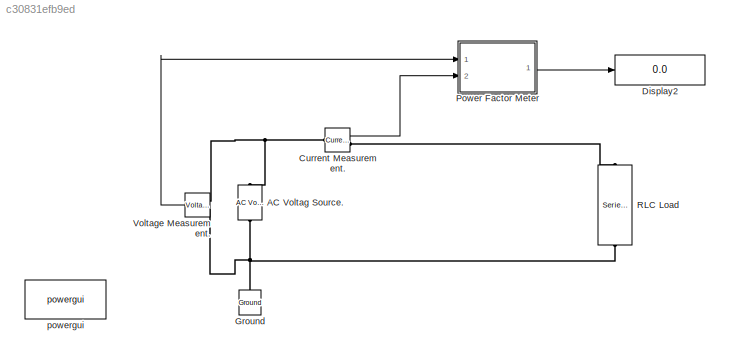
MODEL slx_c30831efb9ed
KIND model
CONFIG AbsTol = auto
CONFIG EnableMultiTasking = off
CONFIG FixedStep = auto
CONFIG MaxStep = auto
CONFIG MinStep = auto
CONFIG RelTol = 1e-3
CONFIG SampleTimeConstraint = Unconstrained
CONFIG Solver = VariableStepAuto
CONFIG SolverName = VariableStepAuto
CONFIG StartTime = 0.0
CONFIG StopTime = 0.1
BLOCK [Reference]  RLC Load  REF=powerlib/Elements/Series RLC Load
  AttributesFormatString = \n
  Ports = [0, 0, 0, 0, 0, 1, 1]
  SourceBlock = powerlib/Elements/Series RLC Load
  SourceType = Series RLC Load
BLOCK [Reference] AC Voltag Source.  REF=powerlib/Electrical
Sources/AC Voltage Source
  Ports = [0, 0, 0, 0, 0, 1, 1]
  SourceBlock = powerlib/Electrical\nSources/AC Voltage Source
  SourceType = AC Voltage Source
BLOCK [Reference] Current Measurement.  REF=powerlib/Measurements/Current Measurement
  Ports = [0, 1, 0, 0, 0, 1, 1]
  SourceBlock = powerlib/Measurements/Current Measurement
  SourceType = Current Measurement
  UserDataPersistent = on
BLOCK [Display] Display2
  Decimation = 1
  Ports = [1]
BLOCK [Reference] Ground  REF=powerlib/Elements/Ground
  Ports = [0, 0, 0, 0, 0, 1]
  SourceBlock = powerlib/Elements/Ground
  SourceType = Ground
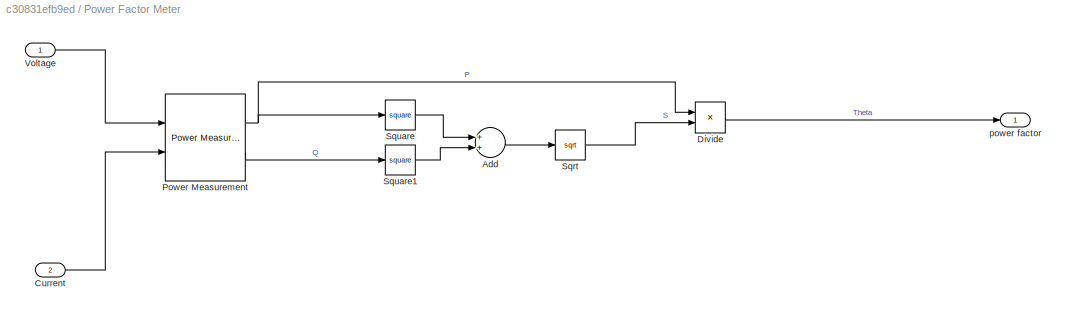
BLOCK [SubSystem] Power Factor Meter
  Ports = [2, 1]
  RequestExecContextInheritance = off
BLOCK [Sum] Power Factor Meter/Add
  InputSameDT = off
  OutDataTypeStr = Inherit: Inherit via internal rule
  Ports = [2, 1]
  SaturateOnIntegerOverflow = off
BLOCK [Inport] Power Factor Meter/Current
  IconDisplay = Port number
  Port = 2
BLOCK [Product] Power Factor Meter/Divide
  InputSameDT = off
  Inputs = */
  OutDataTypeStr = Inherit: Inherit via internal rule
  Ports = [2, 1]
  RndMeth = Floor
  SaturateOnIntegerOverflow = off
BLOCK [Reference] Power Factor Meter/Power Measurement  REF=eePowerMeasurement/Power
Measurement
  Ports = [2, 2]
  SourceBlock = eePowerMeasurement/Power\nMeasurement
  SourceType = Power Measurement
BLOCK [Sqrt] Power Factor Meter/Sqrt
BLOCK [Math] Power Factor Meter/Square
  Operator = square
  Ports = [1, 1]
BLOCK [Math] Power Factor Meter/Square1
  Operator = square
  Ports = [1, 1]
BLOCK [Inport] Power Factor Meter/Voltage
  IconDisplay = Port number
BLOCK [Outport] Power Factor Meter/power factor
  IconDisplay = Port number
BLOCK [Reference] Voltage Measurement.  REF=powerlib/Measurements/Voltage Measurement
  Ports = [0, 1, 0, 0, 0, 2]
  SourceBlock = powerlib/Measurements/Voltage Measurement
  SourceType = Voltage Measurement
  UserDataPersistent = on
BLOCK [Reference] powergui  REF=powerlib/powergui
  Ports = []
  Priority = 1
  SourceBlock = powerlib/powergui
  SourceType = PSB option menu block
LINE Current Measurement.:1 -> Power Factor Meter:2
LINE Power Factor Meter/Add:1 -> Power Factor Meter/Sqrt:1
LINE Power Factor Meter/Current:1 -> Power Factor Meter/Power Measurement:2
LINE Power Factor Meter/Divide:1 -> Power Factor Meter/power factor:1
NET Power Factor Meter/Power Measurement:1 -> Power Factor Meter/Divide:1, Power Factor Meter/Square:1
LINE Power Factor Meter/Power Measurement:2 -> Power Factor Meter/Square1:1
LINE Power Factor Meter/Sqrt:1 -> Power Factor Meter/Divide:2
LINE Power Factor Meter/Square1:1 -> Power Factor Meter/Add:2
LINE Power Factor Meter/Square:1 -> Power Factor Meter/Add:1
LINE Power Factor Meter/Voltage:1 -> Power Factor Meter/Power Measurement:1
LINE Power Factor Meter:1 -> Display2:1
LINE Voltage Measurement.:1 -> Power Factor Meter:1
PLINE  RLC Load:LConn1 -- Current Measurement.:RConn1
PNET net1:  RLC Load:RConn1 -- AC Voltag Source.:LConn1 -- Ground:LConn1 -- Voltage Measurement.:LConn2
PNET net2: AC Voltag Source.:RConn1 -- Current Measurement.:LConn1 -- Voltage Measurement.:LConn1
note: NET lines group one-source signal fan-out (src -> all destinations, sorted); 1:1 wires keep LINE; PNET lines group multi-terminal physical nets as a canonical sorted terminal list (undirected conserving connections); 2-terminal nets keep the pairwise PLINE form
